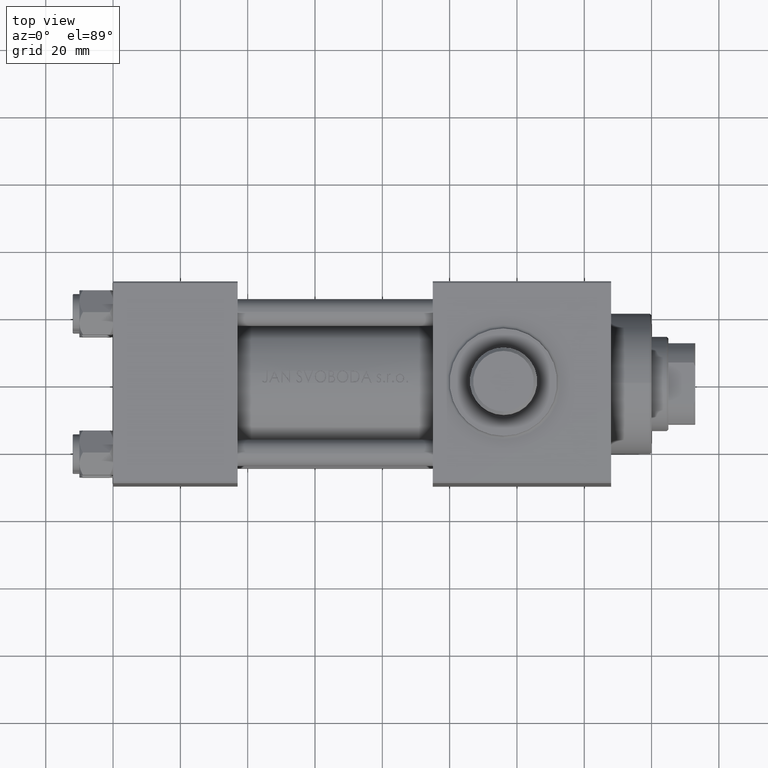
[diagram: clean part render]
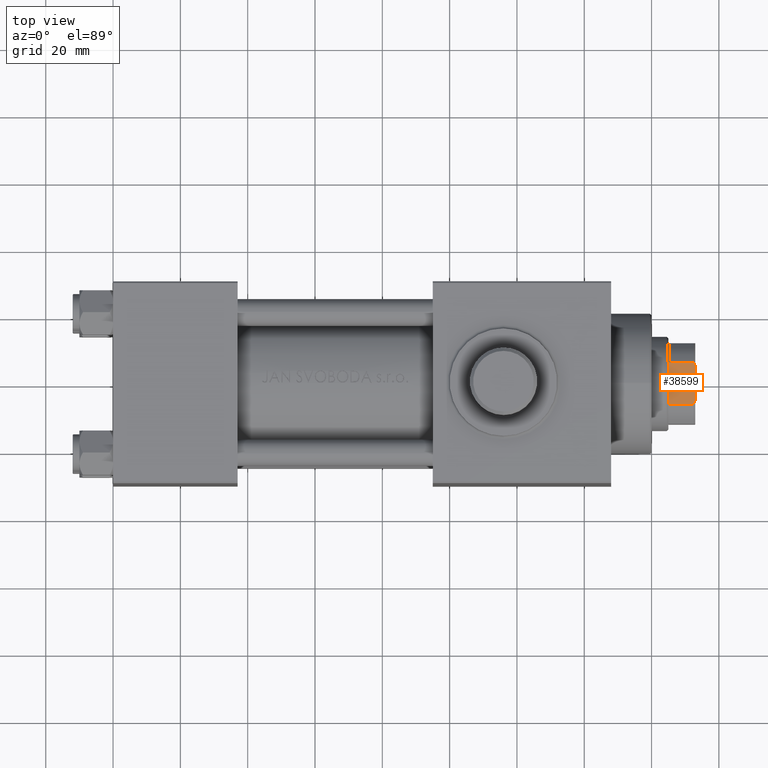
[diagram: same view with one face highlighted and labeled with its STEP entity id]
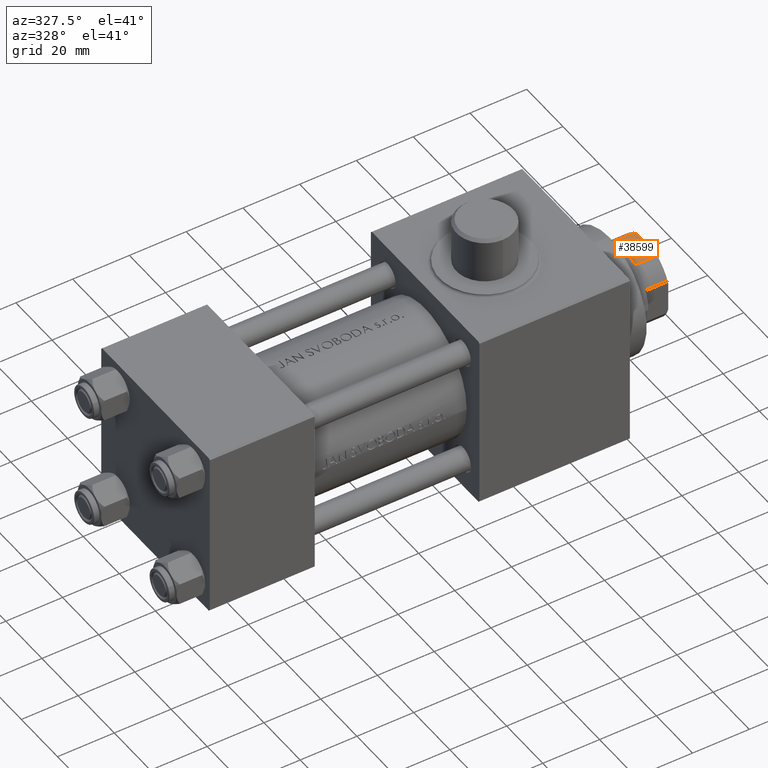
[diagram: same view with one face highlighted and labeled with its STEP entity id]
A machine part, top view. The second image highlights one B-rep face of the part: STEP entity #38599.
A second angle (auxiliary view) of the same face is appended — the face is thin or edge-on in the first view.
In plain terms, the highlighted planar face has unit normal (0, 0, -1).
Its self-contained STEP definition (entity closure, byte-faithful):
#289 = VERTEX_POINT ( 'NONE', #4398 ) ;
#542 = EDGE_CURVE ( 'NONE', #17561, #289, #10165, .T. ) ;
#1375 = CARTESIAN_POINT ( 'NONE',  ( 6.184658438426496652, -11.99999999999999645, 135.5000000000000284 ) ) ;
#3325 = DIRECTION ( 'NONE',  ( -0.000000000000000000, -0.000000000000000000, 1.000000000000000000 ) ) ;
#3471 = VERTEX_POINT ( 'NONE', #14142 ) ;
#4398 = CARTESIAN_POINT ( 'NONE',  ( 6.184658438426496652, -11.99999999999999645, 128.0000000000000853 ) ) ;
#5558 = CARTESIAN_POINT ( 'NONE',  ( -5.400255697127810173, -12.00000000000000355, 135.8460555011047006 ) ) ;
#6717 = DIRECTION ( 'NONE',  ( -0.000000000000000000, -0.000000000000000000, 1.000000000000000000 ) ) ;
#8453 = PLANE ( 'NONE',  #18887 ) ;
#8728 = VECTOR ( 'NONE', #42703, 1000.000000000000000 ) ;
#9078 = CARTESIAN_POINT ( 'NONE',  ( -5.000000000000031086, -12.00000000000000355, 136.0000000000000000 ) ) ;
#10165 = LINE ( 'NONE', #28415, #8728 ) ;
#10273 = DIRECTION ( 'NONE',  ( 1.000000000000000000, 0.000000000000000000, 0.000000000000000000 ) ) ;
#11574 = ORIENTED_EDGE ( 'NONE', *, *, #34259, .F. ) ;
#11857 = CARTESIAN_POINT ( 'NONE',  ( -5.000000000000031086, -12.00000000000000355, 136.0000000000000000 ) ) ;
#14142 = CARTESIAN_POINT ( 'NONE',  ( 5.000000000000053291, -12.00000000000000355, 136.0000000000000000 ) ) ;
#14177 = EDGE_CURVE ( 'NONE', #27020, #42049, #33292, .T. ) ;
#14423 = ORIENTED_EDGE ( 'NONE', *, *, #14177, .T. ) ;
#15047 = VECTOR ( 'NONE', #6717, 1000.000000000000000 ) ;
#16312 = CARTESIAN_POINT ( 'NONE',  ( -6.184658438426496652, -11.99999999999999645, 135.5000000000000284 ) ) ;
#16826 = CARTESIAN_POINT ( 'NONE',  ( -11.99999999999999822, -12.00000000000000355, 136.0000000000000000 ) ) ;
#16914 = CARTESIAN_POINT ( 'NONE',  ( 6.184658438426496652, -11.99999999999999645, 135.5000000000000284 ) ) ;
#17561 = VERTEX_POINT ( 'NONE', #20085 ) ;
#18887 = AXIS2_PLACEMENT_3D ( 'NONE', #33969, #37936, #40527 ) ;
#19825 = CARTESIAN_POINT ( 'NONE',  ( -5.794808544282252782, -12.00000000000000355, 135.6785991435214385 ) ) ;
#20085 = CARTESIAN_POINT ( 'NONE',  ( -6.184658438426496652, -11.99999999999999645, 128.0000000000000853 ) ) ;
#20212 = CARTESIAN_POINT ( 'NONE',  ( 5.794808544282259888, -11.99999999999999645, 135.6785991435214385 ) ) ;
#23921 = EDGE_LOOP ( 'NONE', ( #39196, #29787, #45978, #14423, #11574, #38723 ) ) ;
#24629 = CARTESIAN_POINT ( 'NONE',  ( 6.184658438426496652, -11.99999999999999645, -0.001000000000001000089 ) ) ;
#25536 = EDGE_CURVE ( 'NONE', #27020, #3471, #31582, .T. ) ;
#27020 = VERTEX_POINT ( 'NONE', #11857 ) ;
#28415 = CARTESIAN_POINT ( 'NONE',  ( -11.99999999999999822, -12.00000000000000355, 128.0000000000000000 ) ) ;
#29787 = ORIENTED_EDGE ( 'NONE', *, *, #40816, .T. ) ;
#31171 = EDGE_CURVE ( 'NONE', #289, #45842, #32122, .T. ) ;
#31582 = LINE ( 'NONE', #16826, #38122 ) ;
#32122 = LINE ( 'NONE', #24629, #33766 ) ;
#33292 = B_SPLINE_CURVE_WITH_KNOTS ( 'NONE', 3,
 ( #9078, #5558, #19825, #16312 ),
 .UNSPECIFIED., .F., .F.,
 ( 4, 4 ),
 ( 0.000000000000000000, 0.001285852097146092258 ),
 .UNSPECIFIED. ) ;
#33766 = VECTOR ( 'NONE', #3325, 1000.000000000000000 ) ;
#33969 = CARTESIAN_POINT ( 'NONE',  ( -11.99999999999999822, -12.00000000000000355, 136.0000000000000000 ) ) ;
#34259 = EDGE_CURVE ( 'NONE', #17561, #42049, #45829, .T. ) ;
#34284 = CARTESIAN_POINT ( 'NONE',  ( 5.000000000000053291, -12.00000000000000355, 136.0000000000000000 ) ) ;
#34391 = CARTESIAN_POINT ( 'NONE',  ( -6.184658438426496652, -11.99999999999999645, 135.5000000000000284 ) ) ;
#34523 = CARTESIAN_POINT ( 'NONE',  ( 5.400255697127826160, -12.00000000000000355, 135.8460555011047006 ) ) ;
#34838 = CARTESIAN_POINT ( 'NONE',  ( -6.184658438426496652, -11.99999999999999645, -0.001000000000001000089 ) ) ;
#37241 = FACE_OUTER_BOUND ( 'NONE', #23921, .T. ) ;
#37936 = DIRECTION ( 'NONE',  ( 0.000000000000000000, 1.000000000000000000, 0.000000000000000000 ) ) ;
#38122 = VECTOR ( 'NONE', #10273, 1000.000000000000000 ) ;
#38480 = B_SPLINE_CURVE_WITH_KNOTS ( 'NONE', 3,
 ( #16914, #20212, #34523, #34284 ),
 .UNSPECIFIED., .F., .F.,
 ( 4, 4 ),
 ( 0.000000000000000000, 0.001285852097146072308 ),
 .UNSPECIFIED. ) ;
#38599 = ADVANCED_FACE ( 'NONE', ( #37241 ), #8453, .F. ) ;
#38723 = ORIENTED_EDGE ( 'NONE', *, *, #542, .T. ) ;
#39196 = ORIENTED_EDGE ( 'NONE', *, *, #31171, .T. ) ;
#40527 = DIRECTION ( 'NONE',  ( 0.000000000000000000, -0.000000000000000000, 1.000000000000000000 ) ) ;
#40816 = EDGE_CURVE ( 'NONE', #45842, #3471, #38480, .T. ) ;
#42049 = VERTEX_POINT ( 'NONE', #34391 ) ;
#42703 = DIRECTION ( 'NONE',  ( 1.000000000000000000, 0.000000000000000000, 0.000000000000000000 ) ) ;
#45829 = LINE ( 'NONE', #34838, #15047 ) ;
#45842 = VERTEX_POINT ( 'NONE', #1375 ) ;
#45978 = ORIENTED_EDGE ( 'NONE', *, *, #25536, .F. ) ;